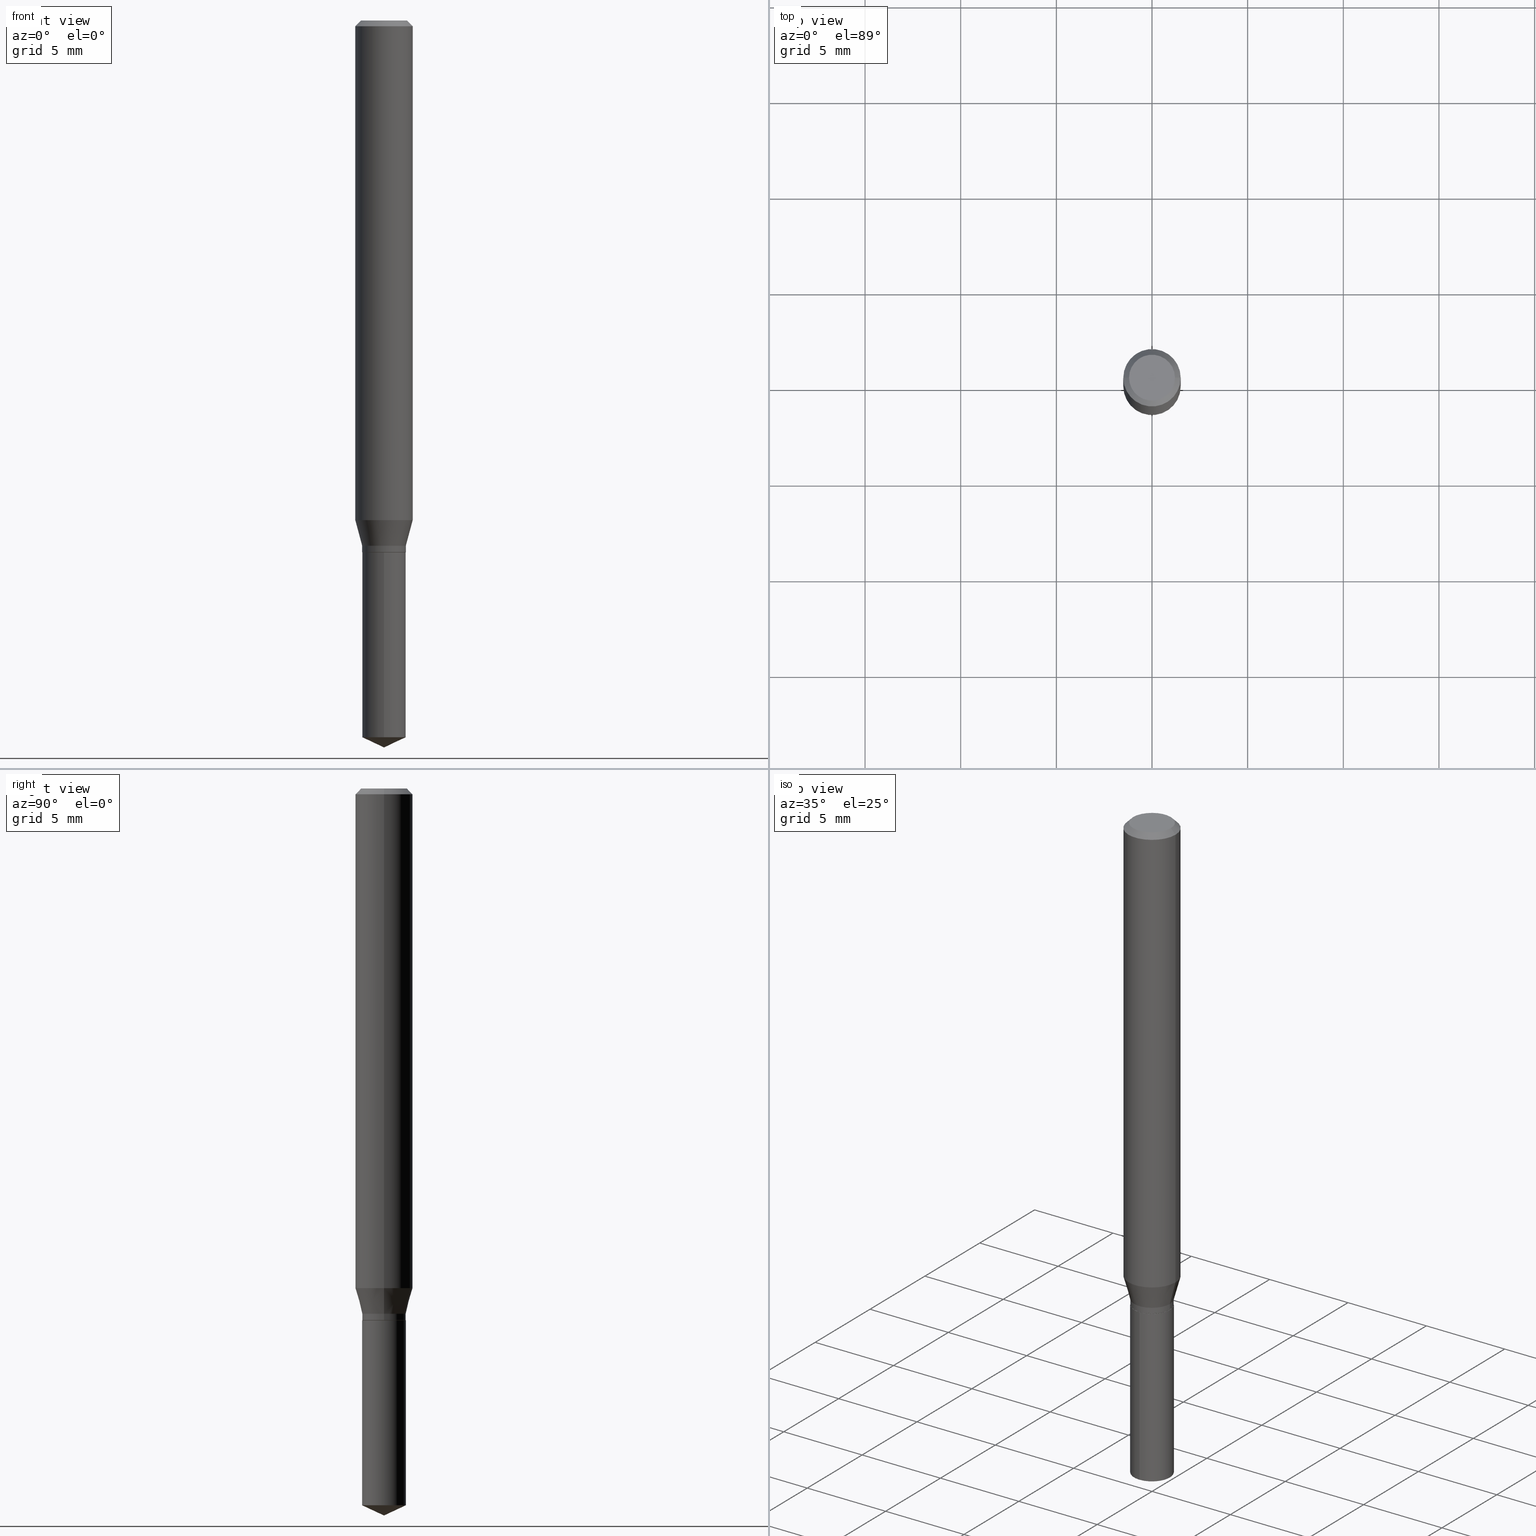
[diagram: canonical four-view strip — front | top / right | iso, engineering-drawing reading convention]
A machine part, canonical four-view strip (front | top / right | iso — engineering-drawing reading convention). The complete STEP part file that produces these views, byte-faithful:
ISO-10303-21;
HEADER;
FILE_DESCRIPTION (( 'STEP AP203' ),
    '1' );
FILE_NAME ('07634.STEP',
    '2024-04-24T00:07:09',
    ( '' ),
    ( '' ),
    'SwSTEP 2.0',
    'SolidWorks 2023',
    '' );
FILE_SCHEMA (( 'CONFIG_CONTROL_DESIGN' ));
ENDSEC;

DATA;
#1 = CARTESIAN_POINT ( 'NONE',  ( -0.05905000000000006771, 4.195754854663396409E-16, -2.904631170795525045E-30 ) ) ;
#2 = ORIENTED_EDGE ( 'NONE', *, *, #223, .F. ) ;
#3 = CALENDAR_DATE ( 2024, 23, 4 ) ;
#4 = CC_DESIGN_APPROVAL ( #477, ( #439 ) ) ;
#5 = DIRECTION ( 'NONE',  ( -2.445468806185136597E-29, 3.491481338843145583E-15, 1.000000000000000000 ) ) ;
#6 = CARTESIAN_POINT ( 'NONE',  ( -0.05904999999999999832, 3.711095515056362054E-16, -0.01181000000000007738 ) ) ;
#7 = DIRECTION ( 'NONE',  ( -2.445468806185136597E-29, 3.491481338843145583E-15, 1.000000000000000000 ) ) ;
#8 = ADVANCED_FACE ( 'NONE', ( #167 ), #390, .F. ) ;
#9 = COORDINATED_UNIVERSAL_TIME_OFFSET ( 5, 0, .BEHIND. ) ;
#10 = DIRECTION ( 'NONE',  ( -6.982962677686266711E-15, -1.000000000000000000, 3.042146986263099323E-15 ) ) ;
#11 = ORIENTED_EDGE ( 'NONE', *, *, #373, .T. ) ;
#12 = PERSON_AND_ORGANIZATION_ROLE ( 'creator' ) ;
#13 = VERTEX_POINT ( 'NONE', #393 ) ;
#14 = CIRCLE ( 'NONE', #161, 0.04490000000000000241 ) ;
#15 = CLOSED_SHELL ( 'NONE', ( #66, #276, #26, #77, #461, #400, #298, #227, #184, #430, #8, #379 ) ) ;
#16 = PERSON_AND_ORGANIZATION ( #383, #489 ) ;
#17 = EDGE_CURVE ( 'NONE', #78, #19, #95, .T. ) ;
#18 = DIRECTION ( 'NONE',  ( 1.000000000000000000, -6.982962677686266711E-15, 4.876176775795936353E-29 ) ) ;
#19 = VERTEX_POINT ( 'NONE', #100 ) ;
#20 = CARTESIAN_POINT ( 'NONE',  ( 2.675342873966538993E-29, -3.819680584694400481E-15, -1.093999999999999861 ) ) ;
#21 = ORIENTED_EDGE ( 'NONE', *, *, #211, .T. ) ;
#22 = VECTOR ( 'NONE', #68, 39.37007874015748143 ) ;
#23 = DIRECTION ( 'NONE',  ( -2.445468806185136597E-29, 3.491481338843145583E-15, 1.000000000000000000 ) ) ;
#24 = DIRECTION ( 'NONE',  ( 1.000000000000000000, -6.982962677686265133E-15, 0.000000000000000000 ) ) ;
#25 = DIRECTION ( 'NONE',  ( 2.445468806185136597E-29, -3.491481338843145583E-15, -1.000000000000000000 ) ) ;
#26 = ADVANCED_FACE ( 'NONE', ( #470 ), #171, .T. ) ;
#27 = CYLINDRICAL_SURFACE ( 'NONE', #187, 0.05905000000000006771 ) ;
#28 = UNCERTAINTY_MEASURE_WITH_UNIT (LENGTH_MEASURE( 1.000000000000000082E-05 ), #269, 'distance_accuracy_value', 'NONE');
#29 = LINE ( 'NONE', #294, #270 ) ;
#30 = AXIS2_PLACEMENT_3D ( 'NONE', #277, #163, #310 ) ;
#31 = ORIENTED_EDGE ( 'NONE', *, *, #484, .F. ) ;
#32 = EDGE_CURVE ( 'NONE', #155, #450, #90, .T. ) ;
#33 = DIRECTION ( 'NONE',  ( -6.982962677686266711E-15, -1.000000000000000000, 3.042146986263099323E-15 ) ) ;
#34 = ORIENTED_EDGE ( 'NONE', *, *, #484, .T. ) ;
#35 = DIRECTION ( 'NONE',  ( -2.445468806185136597E-29, 3.491481338843145583E-15, 1.000000000000000000 ) ) ;
#36 = EDGE_CURVE ( 'NONE', #274, #155, #98, .T. ) ;
#37 = AXIS2_PLACEMENT_3D ( 'NONE', #332, #72, #108 ) ;
#38 = CARTESIAN_POINT ( 'NONE',  ( 8.265746106709734507E-48, -1.180129479067563789E-33, -3.380025165646692144E-19 ) ) ;
#39 = DIRECTION ( 'NONE',  ( -2.445468806185136597E-29, 3.491481338843145583E-15, 1.000000000000000000 ) ) ;
#40 = CARTESIAN_POINT ( 'NONE',  ( 3.190336883563210417E-16, 0.04489999999999617908, -1.094500000000000028 ) ) ;
#41 = ORIENTED_EDGE ( 'NONE', *, *, #55, .F. ) ;
#42 = CARTESIAN_POINT ( 'NONE',  ( -0.04490000000000000241, 3.190336883562850006E-16, -2.208601855524453142E-30 ) ) ;
#43 = EDGE_LOOP ( 'NONE', ( #436, #369, #278, #132 ) ) ;
#44 = PERSON_AND_ORGANIZATION ( #383, #489 ) ;
#45 = CONICAL_SURFACE ( 'NONE', #150, 0.04440000000000000197, 0.7853981633974141952 ) ;
#46 = CARTESIAN_POINT ( 'NONE',  ( -9.261924752013118283E-28, 1.322368428517963298E-13, 37.87397874015748300 ) ) ;
#47 = EDGE_CURVE ( 'NONE', #488, #83, #173, .T. ) ;
#48 = ORIENTED_EDGE ( 'NONE', *, *, #469, .T. ) ;
#49 = DATE_AND_TIME ( #3, #282 ) ;
#50 = DIRECTION ( 'NONE',  ( -2.445468806185136597E-29, 3.491481338843145583E-15, 1.000000000000000000 ) ) ;
#51 = EDGE_CURVE ( 'NONE', #13, #135, #192, .T. ) ;
#52 = DATE_AND_TIME ( #387, #345 ) ;
#53 = DIRECTION ( 'NONE',  ( -2.445468806185136597E-29, 3.491481338843145583E-15, 1.000000000000000000 ) ) ;
#54 = APPROVAL_DATE_TIME ( #394, #286 ) ;
#55 = EDGE_CURVE ( 'NONE', #78, #352, #255, .T. ) ;
#56 = AXIS2_PLACEMENT_3D ( 'NONE', #290, #245, #466 ) ;
#57 = CIRCLE ( 'NONE', #193, 0.04490000000000000241 ) ;
#58 = AXIS2_PLACEMENT_3D ( 'NONE', #182, #364, #252 ) ;
#59 = DIRECTION ( 'NONE',  ( -6.328713451373386733E-15, -0.9063077870366508249, 0.4226182617406975539 ) ) ;
#60 = EDGE_LOOP ( 'NONE', ( #118, #434, #181, #101 ) ) ;
#61 = CARTESIAN_POINT ( 'NONE',  ( -0.04724000000000000421, 3.504923541997677355E-16, -3.380025165670481712E-19 ) ) ;
#62 = ORIENTED_EDGE ( 'NONE', *, *, #356, .F. ) ;
#63 = VECTOR ( 'NONE', #428, 39.37007874015748143 ) ;
#64 = LINE ( 'NONE', #114, #216 ) ;
#65 = AXIS2_PLACEMENT_3D ( 'NONE', #142, #368, #109 ) ;
#66 = ADVANCED_FACE ( 'NONE', ( #176 ), #482, .T. ) ;
#67 = CC_DESIGN_SECURITY_CLASSIFICATION ( #264, ( #271 ) ) ;
#68 = DIRECTION ( 'NONE',  ( -2.445468806185136877E-29, 3.491481338843145188E-15, 1.000000000000000000 ) ) ;
#69 = CARTESIAN_POINT ( 'NONE',  ( 3.607460806401367786E-29, -5.150508740125733757E-15, -1.475162786148840777 ) ) ;
#70 = DIRECTION ( 'NONE',  ( 1.000000000000000000, -6.982962677686266711E-15, 4.876176775795936353E-29 ) ) ;
#71 = EDGE_CURVE ( 'NONE', #378, #225, #426, .T. ) ;
#72 = DIRECTION ( 'NONE',  ( -2.445468806185136597E-29, 3.491481338843145583E-15, 1.000000000000000000 ) ) ;
#73 = MANIFOLD_SOLID_BREP ( 'Body-Move/Copy2[2]', #15 ) ;
#74 = ORIENTED_EDGE ( 'NONE', *, *, #153, .F. ) ;
#75 = DIRECTION ( 'NONE',  ( 0.2588190451025215166, 1.565188264969620784E-15, 0.9659258262890679791 ) ) ;
#76 = CARTESIAN_POINT ( 'NONE',  ( 0.05905000000000013016, -4.002255315040900596E-15, -1.028191481072900038 ) ) ;
#77 = ADVANCED_FACE ( 'NONE', ( #221 ), #385, .T. ) ;
#78 = VERTEX_POINT ( 'NONE', #365 ) ;
#79 = DIRECTION ( 'NONE',  ( 0.000000000000000000, 0.000000000000000000, 1.000000000000000000 ) ) ;
#80 = AXIS2_PLACEMENT_3D ( 'NONE', #195, #5, #454 ) ;
#81 = AXIS2_PLACEMENT_3D ( 'NONE', #451, #416, #257 ) ;
#82 = DIRECTION ( 'NONE',  ( -2.445468806185136597E-29, 3.491481338843145583E-15, 1.000000000000000000 ) ) ;
#83 = VERTEX_POINT ( 'NONE', #443 ) ;
#84 = DATE_AND_TIME ( #275, #453 ) ;
#85 = ADVANCED_FACE ( 'NONE', ( #147 ), #145, .F. ) ;
#86 = CYLINDRICAL_SURFACE ( 'NONE', #92, 0.04490000000000000241 ) ;
#87 = ORIENTED_EDGE ( 'NONE', *, *, #47, .F. ) ;
#88 = CALENDAR_DATE ( 2024, 23, 4 ) ;
#89 = CARTESIAN_POINT ( 'NONE',  ( -0.04490000000000000241, -3.477952267635635589E-15, -1.093999999999999861 ) ) ;
#90 = LINE ( 'NONE', #208, #355 ) ;
#91 = PERSON_AND_ORGANIZATION ( #383, #489 ) ;
#92 = AXIS2_PLACEMENT_3D ( 'NONE', #371, #125, #10 ) ;
#93 = LINE ( 'NONE', #224, #295 ) ;
#94 = ORIENTED_EDGE ( 'NONE', *, *, #433, .F. ) ;
#95 = LINE ( 'NONE', #281, #63 ) ;
#96 = COORDINATED_UNIVERSAL_TIME_OFFSET ( 5, 0, .BEHIND. ) ;
#97 = ORIENTED_EDGE ( 'NONE', *, *, #419, .F. ) ;
#98 = LINE ( 'NONE', #396, #129 ) ;
#99 = ORIENTED_EDGE ( 'NONE', *, *, #399, .F. ) ;
#100 = CARTESIAN_POINT ( 'NONE',  ( 0.04490000000000000241, -4.087826351517553684E-15, -1.080999999999999961 ) ) ;
#101 = ORIENTED_EDGE ( 'NONE', *, *, #143, .F. ) ;
#102 = DIRECTION ( 'NONE',  ( 1.000000000000000000, -6.982962677686266711E-15, 0.000000000000000000 ) ) ;
#103 = EDGE_LOOP ( 'NONE', ( #31, #457, #305, #309 ) ) ;
#104 = EDGE_CURVE ( 'NONE', #274, #474, #291, .T. ) ;
#105 = DIRECTION ( 'NONE',  ( 6.439704144417040608E-15, 0.9063077870366537114, 0.4226182617406912811 ) ) ;
#106 = CARTESIAN_POINT ( 'NONE',  ( 2.888098660104665518E-31, -4.123439461173782112E-17, -0.01181000000000007738 ) ) ;
#107 = VECTOR ( 'NONE', #459, 39.37007874015748143 ) ;
#108 = DIRECTION ( 'NONE',  ( 1.000000000000000000, -6.982962677686263555E-15, 0.000000000000000000 ) ) ;
#109 = DIRECTION ( 'NONE',  ( -1.000000000000000000, 6.982962677686266711E-15, 0.000000000000000000 ) ) ;
#110 = DIRECTION ( 'NONE',  ( 6.982962677686265922E-15, 1.000000000000000000, -3.491495526022433599E-15 ) ) ;
#111 = CIRCLE ( 'NONE', #80, 0.05905000000000013016 ) ;
#112 = CARTESIAN_POINT ( 'NONE',  ( 3.607460806401367786E-29, -5.150508740125733757E-15, -1.475162786148840777 ) ) ;
#113 = ORIENTED_EDGE ( 'NONE', *, *, #315, .F. ) ;
#114 = CARTESIAN_POINT ( 'NONE',  ( 0.05904999999999999832, -4.463468013801467941E-16, -0.01181000000000007738 ) ) ;
#115 = DIRECTION ( 'NONE',  ( 1.000000000000000000, -6.982962677686267499E-15, 4.876176775795935232E-29 ) ) ;
#116 = APPROVAL ( #382, 'UNSPECIFIED' ) ;
#117 = DIRECTION ( 'NONE',  ( 0.7071067811865451302, -7.319954787623248157E-15, -0.7071067811865499042 ) ) ;
#118 = ORIENTED_EDGE ( 'NONE', *, *, #449, .F. ) ;
#119 = AXIS2_PLACEMENT_3D ( 'NONE', #404, #222, #188 ) ;
#120 = CALENDAR_DATE ( 2024, 23, 4 ) ;
#121 = FACE_OUTER_BOUND ( 'NONE', #43, .T. ) ;
#122 = ORIENTED_EDGE ( 'NONE', *, *, #51, .T. ) ;
#123 = EDGE_CURVE ( 'NONE', #228, #322, #360, .T. ) ;
#124 = APPROVAL_STATUS ( 'not_yet_approved' ) ;
#125 = DIRECTION ( 'NONE',  ( -2.445458899330790108E-29, 3.491495526022433205E-15, 1.000000000000000000 ) ) ;
#126 = ORIENTED_EDGE ( 'NONE', *, *, #143, .T. ) ;
#127 = SHAPE_DEFINITION_REPRESENTATION ( #210, #212 ) ;
#128 = LINE ( 'NONE', #6, #280 ) ;
#129 = VECTOR ( 'NONE', #59, 39.37007874015748854 ) ;
#130 = PERSON_AND_ORGANIZATION ( #383, #489 ) ;
#131 = VECTOR ( 'NONE', #475, 39.37007874015748854 ) ;
#132 = ORIENTED_EDGE ( 'NONE', *, *, #211, .F. ) ;
#133 = AXIS2_PLACEMENT_3D ( 'NONE', #38, #35, #362 ) ;
#134 = APPROVAL_ROLE ( '' ) ;
#135 = VERTEX_POINT ( 'NONE', #61 ) ;
#136 = EDGE_LOOP ( 'NONE', ( #272, #21, #326, #94 ) ) ;
#137 = DIRECTION ( 'NONE',  ( -0.2588190451025215166, 5.211531920934551042E-15, 0.9659258262890679791 ) ) ;
#138 = AXIS2_PLACEMENT_3D ( 'NONE', #363, #25, #299 ) ;
#139 = CC_DESIGN_APPROVAL ( #286, ( #264 ) ) ;
#140 = DIRECTION ( 'NONE',  ( -2.445468806185136597E-29, 3.491481338843145583E-15, 1.000000000000000000 ) ) ;
#141 = CC_DESIGN_PERSON_AND_ORGANIZATION_ASSIGNMENT ( #424, #12, ( #439 ) ) ;
#142 = CARTESIAN_POINT ( 'NONE',  ( 2.888098660104665518E-31, -4.123439461173782112E-17, -0.01181000000000007738 ) ) ;
#143 = EDGE_CURVE ( 'NONE', #372, #450, #178, .T. ) ;
#144 = CYLINDRICAL_SURFACE ( 'NONE', #232, 0.04490000000000000241 ) ;
#145 = PLANE ( 'NONE',  #395 ) ;
#146 = EDGE_CURVE ( 'NONE', #228, #352, #29, .T. ) ;
#147 = FACE_OUTER_BOUND ( 'NONE', #340, .T. ) ;
#148 = FACE_OUTER_BOUND ( 'NONE', #190, .T. ) ;
#149 = ORIENTED_EDGE ( 'NONE', *, *, #356, .T. ) ;
#150 = AXIS2_PLACEMENT_3D ( 'NONE', #273, #234, #456 ) ;
#151 =( GEOMETRIC_REPRESENTATION_CONTEXT ( 3 ) GLOBAL_UNCERTAINTY_ASSIGNED_CONTEXT ( ( #28 ) ) GLOBAL_UNIT_ASSIGNED_CONTEXT ( ( #269, #442, #329 ) ) REPRESENTATION_CONTEXT ( 'NONE', 'WORKASPACE' ) );
#152 = ORIENTED_EDGE ( 'NONE', *, *, #17, .F. ) ;
#153 = EDGE_CURVE ( 'NONE', #155, #474, #432, .T. ) ;
#154 = APPLICATION_PROTOCOL_DEFINITION ( 'international standard', 'config_control_design', 1994, #437 ) ;
#155 = VERTEX_POINT ( 'NONE', #258 ) ;
#156 = DIRECTION ( 'NONE',  ( 1.000000000000000000, 0.000000000000000000, 0.000000000000000000 ) ) ;
#157 = ORIENTED_EDGE ( 'NONE', *, *, #153, .T. ) ;
#158 = CARTESIAN_POINT ( 'NONE',  ( 2.676565608369631794E-29, -3.821426325363822773E-15, -1.094499999999999806 ) ) ;
#159 = DIRECTION ( 'NONE',  ( -2.445458899330790108E-29, 3.491495526022433205E-15, 1.000000000000000000 ) ) ;
#160 = CC_DESIGN_PERSON_AND_ORGANIZATION_ASSIGNMENT ( #44, #348, ( #366 ) ) ;
#161 = AXIS2_PLACEMENT_3D ( 'NONE', #112, #197, #279 ) ;
#162 = CIRCLE ( 'NONE', #133, 0.04724000000000000421 ) ;
#163 = DIRECTION ( 'NONE',  ( -2.445468806185136597E-29, 3.491481338843145583E-15, 1.000000000000000000 ) ) ;
#164 = DIRECTION ( 'NONE',  ( -6.982962677686266711E-15, -1.000000000000000000, 3.042146986263099323E-15 ) ) ;
#165 = EDGE_LOOP ( 'NONE', ( #301, #374, #41, #262 ) ) ;
#166 = CARTESIAN_POINT ( 'NONE',  ( 2.676565608369631794E-29, -3.821426325363822773E-15, -1.094499999999999806 ) ) ;
#167 = FACE_OUTER_BOUND ( 'NONE', #421, .T. ) ;
#168 = COORDINATED_UNIVERSAL_TIME_OFFSET ( 5, 0, .BEHIND. ) ;
#169 = CIRCLE ( 'NONE', #30, 0.04490000000000000241 ) ;
#170 = ORIENTED_EDGE ( 'NONE', *, *, #51, .F. ) ;
#171 = CYLINDRICAL_SURFACE ( 'NONE', #337, 0.05905000000000006771 ) ;
#172 = APPROVAL_DATE_TIME ( #49, #477 ) ;
#173 = LINE ( 'NONE', #321, #403 ) ;
#174 = ORIENTED_EDGE ( 'NONE', *, *, #123, .F. ) ;
#175 = PRODUCT_RELATED_PRODUCT_CATEGORY ( 'detail', '', ( #366 ) ) ;
#176 = FACE_OUTER_BOUND ( 'NONE', #165, .T. ) ;
#177 = EDGE_LOOP ( 'NONE', ( #314, #268, #411, #2 ) ) ;
#178 = CIRCLE ( 'NONE', #338, 0.04490000000000000241 ) ;
#179 = VECTOR ( 'NONE', #296, 39.37007874015748143 ) ;
#180 = CARTESIAN_POINT ( 'NONE',  ( 3.658672935554494692E-29, -5.223595400746700193E-15, -1.496099999999999985 ) ) ;
#181 = ORIENTED_EDGE ( 'NONE', *, *, #32, .T. ) ;
#182 = CARTESIAN_POINT ( 'NONE',  ( 2.643551779486132320E-29, -3.774291327289439810E-15, -1.080999999999999961 ) ) ;
#183 = DIRECTION ( 'NONE',  ( -2.445458899330790108E-29, 3.491495526022433205E-15, 1.000000000000000000 ) ) ;
#184 = ADVANCED_FACE ( 'NONE', ( #438 ), #215, .T. ) ;
#185 = DIRECTION ( 'NONE',  ( -2.445468806185136597E-29, 3.491481338843145583E-15, 1.000000000000000000 ) ) ;
#186 = CARTESIAN_POINT ( 'NONE',  ( 0.000000000000000000, 0.000000000000000000, 0.000000000000000000 ) ) ;
#187 = AXIS2_PLACEMENT_3D ( 'NONE', #186, #481, #70 ) ;
#188 = DIRECTION ( 'NONE',  ( -6.982962677686266711E-15, -1.000000000000000000, 3.520397390770418371E-15 ) ) ;
#189 = DIRECTION ( 'NONE',  ( -0.7071067811865232589, 7.493145998870265808E-15, 0.7071067811865715536 ) ) ;
#190 = EDGE_LOOP ( 'NONE', ( #244, #11, #418, #429 ) ) ;
#191 = CARTESIAN_POINT ( 'NONE',  ( 2.514410193749072168E-29, -3.589911368923525676E-15, -1.028191481072900038 ) ) ;
#192 = CIRCLE ( 'NONE', #462, 0.04724000000000000421 ) ;
#193 = AXIS2_PLACEMENT_3D ( 'NONE', #253, #214, #260 ) ;
#194 = DIRECTION ( 'NONE',  ( 1.000000000000000000, -6.982962677686262766E-15, 0.000000000000000000 ) ) ;
#195 = CARTESIAN_POINT ( 'NONE',  ( 2.514410193749072168E-29, -3.589911368923525676E-15, -1.028191481072900038 ) ) ;
#196 = ORIENTED_EDGE ( 'NONE', *, *, #490, .F. ) ;
#197 = DIRECTION ( 'NONE',  ( -2.445458899330790108E-29, 3.491495526022433205E-15, 1.000000000000000000 ) ) ;
#198 = AXIS2_PLACEMENT_3D ( 'NONE', #46, #202, #346 ) ;
#199 = ORIENTED_EDGE ( 'NONE', *, *, #449, .T. ) ;
#200 = LOCAL_TIME ( 20, 7, 9.000000000000000000, #9 ) ;
#201 = PERSON_AND_ORGANIZATION ( #383, #489 ) ;
#202 = DIRECTION ( 'NONE',  ( -2.445458899330790108E-29, 3.491495526022433205E-15, 1.000000000000000000 ) ) ;
#203 = PERSON_AND_ORGANIZATION_ROLE ( 'classification_officer' ) ;
#204 = CYLINDRICAL_SURFACE ( 'NONE', #405, 0.04490000000000000241 ) ;
#205 = EDGE_CURVE ( 'NONE', #322, #78, #410, .T. ) ;
#206 = PERSON_AND_ORGANIZATION_ROLE ( 'creator' ) ;
#207 = EDGE_LOOP ( 'NONE', ( #87, #303, #476, #333 ) ) ;
#208 = CARTESIAN_POINT ( 'NONE',  ( -3.135350242280866089E-16, -0.04490000000000382574, -1.094499999999999806 ) ) ;
#209 = CONICAL_SURFACE ( 'NONE', #198, 84.42940631927518780, 1.134464013796319781 ) ;
#210 = PRODUCT_DEFINITION_SHAPE ( 'NONE', 'NONE',  #439 ) ;
#211 = EDGE_CURVE ( 'NONE', #352, #78, #57, .T. ) ;
#212 = ADVANCED_BREP_SHAPE_REPRESENTATION ( '07634', ( #398, #73, #247 ), #151 ) ;
#213 = CARTESIAN_POINT ( 'NONE',  ( 8.265746106709734507E-48, -1.180129479067563789E-33, -3.380025165646692144E-19 ) ) ;
#214 = DIRECTION ( 'NONE',  ( -2.445468806185136597E-29, 3.491481338843145583E-15, 1.000000000000000000 ) ) ;
#215 = CONICAL_SURFACE ( 'NONE', #65, 0.05904999999999999832, 0.7853981633974449483 ) ;
#216 = VECTOR ( 'NONE', #117, 39.37007874015748143 ) ;
#217 = CARTESIAN_POINT ( 'NONE',  ( 3.190336883563116739E-16, 0.04489999999999617908, -1.094500000000000028 ) ) ;
#218 = CARTESIAN_POINT ( 'NONE',  ( 3.658651059288794515E-29, -5.223626456482161457E-15, -1.496099999999999985 ) ) ;
#219 = CC_DESIGN_PERSON_AND_ORGANIZATION_ASSIGNMENT ( #201, #203, ( #264 ) ) ;
#220 = FACE_OUTER_BOUND ( 'NONE', #415, .T. ) ;
#221 = FACE_OUTER_BOUND ( 'NONE', #242, .T. ) ;
#222 = DIRECTION ( 'NONE',  ( -2.445458899330790108E-29, 3.491495526022433205E-15, 1.000000000000000000 ) ) ;
#223 = EDGE_CURVE ( 'NONE', #460, #378, #297, .T. ) ;
#224 = CARTESIAN_POINT ( 'NONE',  ( 0.04490000000000000241, -4.087826351517553684E-15, -1.080999999999999961 ) ) ;
#225 = VERTEX_POINT ( 'NONE', #408 ) ;
#226 = DIRECTION ( 'NONE',  ( -2.445468806185136597E-29, 3.491481338843145583E-15, 1.000000000000000000 ) ) ;
#227 = ADVANCED_FACE ( 'NONE', ( #148 ), #27, .T. ) ;
#228 = VERTEX_POINT ( 'NONE', #444 ) ;
#229 = MECHANICAL_CONTEXT ( 'NONE', #437, 'mechanical' ) ;
#230 = DESIGN_CONTEXT ( 'detailed design', #266, 'design' ) ;
#231 = CONICAL_SURFACE ( 'NONE', #138, 0.05904999999999999832, 0.7853981633974449483 ) ;
#232 = AXIS2_PLACEMENT_3D ( 'NONE', #402, #39, #478 ) ;
#233 = EDGE_LOOP ( 'NONE', ( #251, #284, #113, #152 ) ) ;
#234 = DIRECTION ( 'NONE',  ( -2.445468806185136597E-29, 3.491481338843145583E-15, 1.000000000000000000 ) ) ;
#235 = EDGE_LOOP ( 'NONE', ( #170, #34, #392, #99 ) ) ;
#236 = FACE_OUTER_BOUND ( 'NONE', #254, .T. ) ;
#237 = CARTESIAN_POINT ( 'NONE',  ( 2.676565608369631794E-29, -3.821426325363822773E-15, -1.094499999999999806 ) ) ;
#238 = APPROVAL_STATUS ( 'not_yet_approved' ) ;
#239 = CARTESIAN_POINT ( 'NONE',  ( 0.04440000000000000197, -4.131469868253092851E-15, -1.094499999999999806 ) ) ;
#240 = ADVANCED_FACE ( 'NONE', ( #359 ), #464, .T. ) ;
#241 = APPROVAL_DATE_TIME ( #52, #116 ) ;
#242 = EDGE_LOOP ( 'NONE', ( #468, #409, #196, #335 ) ) ;
#243 = PERSON_AND_ORGANIZATION_ROLE ( 'design_supplier' ) ;
#244 = ORIENTED_EDGE ( 'NONE', *, *, #358, .F. ) ;
#245 = DIRECTION ( 'NONE',  ( -2.438088387897960049E-29, 3.491481338843145188E-15, 1.000000000000000000 ) ) ;
#246 = AXIS2_PLACEMENT_3D ( 'NONE', #401, #23, #102 ) ;
#247 = AXIS2_PLACEMENT_3D ( 'NONE', #375, #79, #156 ) ;
#248 = CARTESIAN_POINT ( 'NONE',  ( 0.000000000000000000, 0.000000000000000000, 0.000000000000000000 ) ) ;
#249 = ORIENTED_EDGE ( 'NONE', *, *, #351, .F. ) ;
#250 = CARTESIAN_POINT ( 'NONE',  ( 2.676565608369631794E-29, -3.821426325363822773E-15, -1.094499999999999806 ) ) ;
#251 = ORIENTED_EDGE ( 'NONE', *, *, #55, .T. ) ;
#252 = DIRECTION ( 'NONE',  ( 1.000000000000000000, -6.982962677686263555E-15, 0.000000000000000000 ) ) ;
#253 = CARTESIAN_POINT ( 'NONE',  ( 2.675342873966538993E-29, -3.819680584694400481E-15, -1.093999999999999861 ) ) ;
#254 = EDGE_LOOP ( 'NONE', ( #381, #455, #249 ) ) ;
#255 = CIRCLE ( 'NONE', #353, 0.04490000000000000241 ) ;
#256 = AXIS2_PLACEMENT_3D ( 'NONE', #261, #324, #486 ) ;
#257 = DIRECTION ( 'NONE',  ( -1.000000000000000000, 6.982962677686265922E-15, -4.876176775795935793E-29 ) ) ;
#258 = CARTESIAN_POINT ( 'NONE',  ( -3.135350242280772904E-16, -0.04490000000000515107, -1.475162786148840555 ) ) ;
#259 = DIMENSIONAL_EXPONENTS ( 1.000000000000000000, 0.000000000000000000, 0.000000000000000000, 0.000000000000000000, 0.000000000000000000, 0.000000000000000000, 0.000000000000000000 ) ;
#260 = DIRECTION ( 'NONE',  ( 1.000000000000000000, -6.982962677686263555E-15, 0.000000000000000000 ) ) ;
#261 = CARTESIAN_POINT ( 'NONE',  ( 2.676565608369631794E-29, -3.821426325363822773E-15, -1.094499999999999806 ) ) ;
#262 = ORIENTED_EDGE ( 'NONE', *, *, #205, .F. ) ;
#263 = CC_DESIGN_PERSON_AND_ORGANIZATION_ASSIGNMENT ( #130, #206, ( #271 ) ) ;
#264 = SECURITY_CLASSIFICATION ( '', '', #350 ) ;
#265 = CARTESIAN_POINT ( 'NONE',  ( 2.676565608369631794E-29, -3.821426325363822773E-15, -1.094499999999999806 ) ) ;
#266 = APPLICATION_CONTEXT ( 'configuration controlled 3d designs of mechanical parts and assemblies' ) ;
#267 = CC_DESIGN_DATE_AND_TIME_ASSIGNMENT ( #458, #318, ( #264 ) ) ;
#268 = ORIENTED_EDGE ( 'NONE', *, *, #358, .T. ) ;
#269 =( CONVERSION_BASED_UNIT ( 'INCH', #341 ) LENGTH_UNIT ( ) NAMED_UNIT ( #259 ) );
#270 = VECTOR ( 'NONE', #189, 39.37007874015748854 ) ;
#271 = PRODUCT_DEFINITION_FORMATION_WITH_SPECIFIED_SOURCE ( 'ANY', '', #366, .NOT_KNOWN. ) ;
#272 = ORIENTED_EDGE ( 'NONE', *, *, #311, .F. ) ;
#273 = CARTESIAN_POINT ( 'NONE',  ( 2.676565608369631794E-29, -3.821426325363822773E-15, -1.094499999999999806 ) ) ;
#274 = VERTEX_POINT ( 'NONE', #218 ) ;
#275 = CALENDAR_DATE ( 2024, 23, 4 ) ;
#276 = ADVANCED_FACE ( 'NONE', ( #485 ), #231, .T. ) ;
#277 = CARTESIAN_POINT ( 'NONE',  ( 2.643551779486132320E-29, -3.774291327289439810E-15, -1.080999999999999961 ) ) ;
#278 = ORIENTED_EDGE ( 'NONE', *, *, #205, .T. ) ;
#279 = DIRECTION ( 'NONE',  ( -6.982962677686266711E-15, -1.000000000000000000, 6.084293972526198645E-15 ) ) ;
#280 = VECTOR ( 'NONE', #425, 39.37007874015748143 ) ;
#281 = CARTESIAN_POINT ( 'NONE',  ( 0.04490000000000000241, -3.135350242281134301E-16, 2.189403372332375126E-30 ) ) ;
#282 = LOCAL_TIME ( 20, 7, 9.000000000000000000, #431 ) ;
#283 = DATE_TIME_ROLE ( 'creation_date' ) ;
#284 = ORIENTED_EDGE ( 'NONE', *, *, #311, .T. ) ;
#285 = APPLICATION_PROTOCOL_DEFINITION ( 'international standard', 'config_control_design', 1994, #266 ) ;
#286 = APPROVAL ( #238, 'UNSPECIFIED' ) ;
#287 = DIRECTION ( 'NONE',  ( -2.445458899330790108E-29, 3.491495526022433599E-15, 1.000000000000000000 ) ) ;
#288 = CIRCLE ( 'NONE', #308, 0.04490000000000000241 ) ;
#289 = EDGE_LOOP ( 'NONE', ( #157, #199, #62, #319 ) ) ;
#290 = CARTESIAN_POINT ( 'NONE',  ( 2.676565608369631794E-29, -3.821426325363822773E-15, -1.094499999999999806 ) ) ;
#291 = LINE ( 'NONE', #180, #376 ) ;
#292 = ADVANCED_FACE ( 'NONE', ( #445 ), #86, .T. ) ;
#293 = CARTESIAN_POINT ( 'NONE',  ( -0.04490000000000000241, -3.477952267635635589E-15, -1.080999999999999961 ) ) ;
#294 = CARTESIAN_POINT ( 'NONE',  ( -0.04440000000000000197, -3.505945350686337932E-15, -1.094499999999999806 ) ) ;
#295 = VECTOR ( 'NONE', #75, 39.37007874015748143 ) ;
#296 = DIRECTION ( 'NONE',  ( -2.445458899330790108E-29, 3.491495526022433599E-15, 1.000000000000000000 ) ) ;
#297 = LINE ( 'NONE', #330, #22 ) ;
#298 = ADVANCED_FACE ( 'NONE', ( #342 ), #452, .T. ) ;
#299 = DIRECTION ( 'NONE',  ( -1.000000000000000000, 6.982962677686266711E-15, 0.000000000000000000 ) ) ;
#300 = APPROVAL_PERSON_ORGANIZATION ( #320, #286, #134 ) ;
#301 = ORIENTED_EDGE ( 'NONE', *, *, #419, .T. ) ;
#302 = CC_DESIGN_PERSON_AND_ORGANIZATION_ASSIGNMENT ( #91, #243, ( #271 ) ) ;
#303 = ORIENTED_EDGE ( 'NONE', *, *, #433, .T. ) ;
#304 = CARTESIAN_POINT ( 'NONE',  ( -3.135350242280866089E-16, -0.04490000000000382574, -1.094499999999999806 ) ) ;
#305 = ORIENTED_EDGE ( 'NONE', *, *, #399, .T. ) ;
#306 = FACE_OUTER_BOUND ( 'NONE', #233, .T. ) ;
#307 = DIRECTION ( 'NONE',  ( -2.445458899330790108E-29, 3.491495526022433205E-15, 1.000000000000000000 ) ) ;
#308 = AXIS2_PLACEMENT_3D ( 'NONE', #265, #159, #164 ) ;
#309 = ORIENTED_EDGE ( 'NONE', *, *, #487, .T. ) ;
#310 = DIRECTION ( 'NONE',  ( 1.000000000000000000, -6.982962677686263555E-15, 0.000000000000000000 ) ) ;
#311 = EDGE_CURVE ( 'NONE', #352, #488, #380, .T. ) ;
#312 = COORDINATED_UNIVERSAL_TIME_OFFSET ( 5, 0, .BEHIND. ) ;
#313 = DIRECTION ( 'NONE',  ( 1.000000000000000000, -6.982962677686263555E-15, 0.000000000000000000 ) ) ;
#314 = ORIENTED_EDGE ( 'NONE', *, *, #490, .T. ) ;
#315 = EDGE_CURVE ( 'NONE', #19, #488, #169, .T. ) ;
#316 = DIRECTION ( 'NONE',  ( -6.982962677686266711E-15, -1.000000000000000000, 3.042146986263099323E-15 ) ) ;
#317 = APPROVAL_PERSON_ORGANIZATION ( #467, #477, #422 ) ;
#318 = DATE_TIME_ROLE ( 'classification_date' ) ;
#319 = ORIENTED_EDGE ( 'NONE', *, *, #32, .F. ) ;
#320 = PERSON_AND_ORGANIZATION ( #383, #489 ) ;
#321 = CARTESIAN_POINT ( 'NONE',  ( -0.04490000000000000241, -3.455257638933155254E-15, -1.080999999999999961 ) ) ;
#322 = VERTEX_POINT ( 'NONE', #239 ) ;
#323 = AXIS2_PLACEMENT_3D ( 'NONE', #237, #7, #407 ) ;
#324 = DIRECTION ( 'NONE',  ( -2.445468806185136597E-29, 3.491481338843145583E-15, 1.000000000000000000 ) ) ;
#325 = ADVANCED_FACE ( 'NONE', ( #420 ), #423, .T. ) ;
#326 = ORIENTED_EDGE ( 'NONE', *, *, #17, .T. ) ;
#327 = CARTESIAN_POINT ( 'NONE',  ( 3.190336883563209924E-16, 0.04489999999999483987, -1.475162786148840999 ) ) ;
#328 = DIRECTION ( 'NONE',  ( 2.445458899330789267E-29, -3.491495526022433599E-15, -1.000000000000000000 ) ) ;
#329 =( NAMED_UNIT ( * ) SI_UNIT ( $, .STERADIAN. ) SOLID_ANGLE_UNIT ( ) );
#330 = CARTESIAN_POINT ( 'NONE',  ( 0.05905000000000006771, -4.123439461173745257E-16, 2.879382386107503723E-30 ) ) ;
#331 = CIRCLE ( 'NONE', #483, 0.04440000000000000197 ) ;
#332 = CARTESIAN_POINT ( 'NONE',  ( 2.643551779486132320E-29, -3.774291327289439810E-15, -1.080999999999999961 ) ) ;
#333 = ORIENTED_EDGE ( 'NONE', *, *, #373, .F. ) ;
#334 = DIRECTION ( 'NONE',  ( -2.445458899330790108E-29, 3.491495526022433205E-15, 1.000000000000000000 ) ) ;
#335 = ORIENTED_EDGE ( 'NONE', *, *, #367, .F. ) ;
#336 =( LENGTH_UNIT ( ) NAMED_UNIT ( * ) SI_UNIT ( $, .METRE. ) );
#337 = AXIS2_PLACEMENT_3D ( 'NONE', #248, #53, #18 ) ;
#338 = AXIS2_PLACEMENT_3D ( 'NONE', #479, #183, #33 ) ;
#339 = AXIS2_PLACEMENT_3D ( 'NONE', #191, #226, #24 ) ;
#340 = EDGE_LOOP ( 'NONE', ( #149, #126 ) ) ;
#341 = LENGTH_MEASURE_WITH_UNIT ( LENGTH_MEASURE( 0.02539999999999999897 ), #336 );
#342 = FACE_OUTER_BOUND ( 'NONE', #207, .T. ) ;
#343 = LINE ( 'NONE', #1, #412 ) ;
#344 = CC_DESIGN_DATE_AND_TIME_ASSIGNMENT ( #84, #283, ( #439 ) ) ;
#345 = LOCAL_TIME ( 20, 7, 9.000000000000000000, #96 ) ;
#346 = DIRECTION ( 'NONE',  ( -6.982962677686266711E-15, -1.000000000000000000, 3.520397390770418371E-15 ) ) ;
#347 = DIRECTION ( 'NONE',  ( 1.000000000000000000, -6.982962677686266711E-15, 4.876185090822587894E-29 ) ) ;
#348 = PERSON_AND_ORGANIZATION_ROLE ( 'design_owner' ) ;
#349 = CARTESIAN_POINT ( 'NONE',  ( 0.000000000000000000, 0.000000000000000000, 0.000000000000000000 ) ) ;
#350 = SECURITY_CLASSIFICATION_LEVEL ( 'unclassified' ) ;
#351 = EDGE_CURVE ( 'NONE', #474, #155, #14, .T. ) ;
#352 = VERTEX_POINT ( 'NONE', #89 ) ;
#353 = AXIS2_PLACEMENT_3D ( 'NONE', #20, #140, #473 ) ;
#354 = EDGE_LOOP ( 'NONE', ( #370, #447, #74 ) ) ;
#355 = VECTOR ( 'NONE', #287, 39.37007874015748143 ) ;
#356 = EDGE_CURVE ( 'NONE', #450, #372, #288, .T. ) ;
#357 = DIRECTION ( 'NONE',  ( -2.445468806185136597E-29, 3.491481338843145583E-15, 1.000000000000000000 ) ) ;
#358 = EDGE_CURVE ( 'NONE', #83, #225, #343, .T. ) ;
#359 = FACE_OUTER_BOUND ( 'NONE', #354, .T. ) ;
#360 = CIRCLE ( 'NONE', #256, 0.04440000000000000197 ) ;
#361 = AXIS2_PLACEMENT_3D ( 'NONE', #106, #185, #414 ) ;
#362 = DIRECTION ( 'NONE',  ( 1.000000000000000000, -6.982962677686266711E-15, 4.876185090822587894E-29 ) ) ;
#363 = CARTESIAN_POINT ( 'NONE',  ( 2.888098660104665518E-31, -4.123439461173782112E-17, -0.01181000000000007738 ) ) ;
#364 = DIRECTION ( 'NONE',  ( -2.445468806185136597E-29, 3.491481338843145583E-15, 1.000000000000000000 ) ) ;
#365 = CARTESIAN_POINT ( 'NONE',  ( 0.04490000000000000241, -4.133215608922514355E-15, -1.093999999999999861 ) ) ;
#366 = PRODUCT ( '07634', '07634', '', ( #229 ) ) ;
#367 = EDGE_CURVE ( 'NONE', #19, #460, #93, .T. ) ;
#368 = DIRECTION ( 'NONE',  ( 2.445468806185136597E-29, -3.491481338843145583E-15, -1.000000000000000000 ) ) ;
#369 = ORIENTED_EDGE ( 'NONE', *, *, #123, .T. ) ;
#370 = ORIENTED_EDGE ( 'NONE', *, *, #36, .F. ) ;
#371 = CARTESIAN_POINT ( 'NONE',  ( 2.676565608369631794E-29, -3.821426325363822773E-15, -1.094499999999999806 ) ) ;
#372 = VERTEX_POINT ( 'NONE', #40 ) ;
#373 = EDGE_CURVE ( 'NONE', #83, #460, #111, .T. ) ;
#374 = ORIENTED_EDGE ( 'NONE', *, *, #146, .T. ) ;
#375 = CARTESIAN_POINT ( 'NONE',  ( 0.000000000000000000, 0.000000000000000000, 0.000000000000000000 ) ) ;
#376 = VECTOR ( 'NONE', #105, 39.37007874015748854 ) ;
#377 = CLOSED_SHELL ( 'NONE', ( #292, #240, #389, #325, #85 ) ) ;
#378 = VERTEX_POINT ( 'NONE', #384 ) ;
#379 = ADVANCED_FACE ( 'NONE', ( #121 ), #45, .T. ) ;
#380 = LINE ( 'NONE', #42, #107 ) ;
#381 = ORIENTED_EDGE ( 'NONE', *, *, #104, .F. ) ;
#382 = APPROVAL_STATUS ( 'not_yet_approved' ) ;
#383 = PERSON ( 'UNSPECIFIED', 'UNSPECIFIED', 'UNSPECIFIED', ('UNSPECIFIED'), ('UNSPECIFIED'), ('UNSPECIFIED') ) ;
#384 = CARTESIAN_POINT ( 'NONE',  ( 0.05904999999999999832, -4.535783407291118600E-16, -0.01181000000000007738 ) ) ;
#385 = CONICAL_SURFACE ( 'NONE', #37, 0.04490000000000000241, 0.2617993877991502405 ) ;
#386 = CIRCLE ( 'NONE', #361, 0.05904999999999999832 ) ;
#387 = CALENDAR_DATE ( 2024, 23, 4 ) ;
#388 = FACE_OUTER_BOUND ( 'NONE', #136, .T. ) ;
#389 = ADVANCED_FACE ( 'NONE', ( #236 ), #209, .T. ) ;
#390 = PLANE ( 'NONE',  #56 ) ;
#391 = APPROVAL_ROLE ( '' ) ;
#392 = ORIENTED_EDGE ( 'NONE', *, *, #71, .T. ) ;
#393 = CARTESIAN_POINT ( 'NONE',  ( 0.04724000000000000421, -3.852183633974369838E-16, -3.380025165621689721E-19 ) ) ;
#394 = DATE_AND_TIME ( #120, #200 ) ;
#395 = AXIS2_PLACEMENT_3D ( 'NONE', #250, #328, #110 ) ;
#396 = CARTESIAN_POINT ( 'NONE',  ( 3.658651059288795076E-29, -5.223626456482161457E-15, -1.496099999999999985 ) ) ;
#397 = APPROVAL_PERSON_ORGANIZATION ( #16, #116, #391 ) ;
#398 = MANIFOLD_SOLID_BREP ( 'Body-Move/Copy2[1]', #377 ) ;
#399 = EDGE_CURVE ( 'NONE', #135, #225, #128, .T. ) ;
#400 = ADVANCED_FACE ( 'NONE', ( #388 ), #204, .T. ) ;
#401 = CARTESIAN_POINT ( 'NONE',  ( 2.888098660104665518E-31, -4.123439461173782112E-17, -0.01181000000000007738 ) ) ;
#402 = CARTESIAN_POINT ( 'NONE',  ( 0.000000000000000000, 0.000000000000000000, 0.000000000000000000 ) ) ;
#403 = VECTOR ( 'NONE', #137, 39.37007874015748143 ) ;
#404 = CARTESIAN_POINT ( 'NONE',  ( -9.261924752013118283E-28, 1.322368428517963298E-13, 37.87397874015748300 ) ) ;
#405 = AXIS2_PLACEMENT_3D ( 'NONE', #349, #480, #115 ) ;
#406 = PLANE ( 'NONE',  #81 ) ;
#407 = DIRECTION ( 'NONE',  ( 1.000000000000000000, -6.982962677686262766E-15, 0.000000000000000000 ) ) ;
#408 = CARTESIAN_POINT ( 'NONE',  ( -0.05904999999999999832, -1.395997396301291223E-15, -0.01181000000000007738 ) ) ;
#409 = ORIENTED_EDGE ( 'NONE', *, *, #47, .T. ) ;
#410 = LINE ( 'NONE', #435, #131 ) ;
#411 = ORIENTED_EDGE ( 'NONE', *, *, #71, .F. ) ;
#412 = VECTOR ( 'NONE', #413, 39.37007874015748143 ) ;
#413 = DIRECTION ( 'NONE',  ( -2.445468806185136877E-29, 3.491481338843145188E-15, 1.000000000000000000 ) ) ;
#414 = DIRECTION ( 'NONE',  ( 1.000000000000000000, -6.982962677686266711E-15, 0.000000000000000000 ) ) ;
#415 = EDGE_LOOP ( 'NONE', ( #48, #122 ) ) ;
#416 = DIRECTION ( 'NONE',  ( 2.438088387897960049E-29, -3.491481338843145188E-15, -1.000000000000000000 ) ) ;
#417 = AXIS2_PLACEMENT_3D ( 'NONE', #463, #50, #313 ) ;
#418 = ORIENTED_EDGE ( 'NONE', *, *, #223, .T. ) ;
#419 = EDGE_CURVE ( 'NONE', #322, #228, #331, .T. ) ;
#420 = FACE_OUTER_BOUND ( 'NONE', #60, .T. ) ;
#421 = EDGE_LOOP ( 'NONE', ( #97, #174 ) ) ;
#422 = APPROVAL_ROLE ( '' ) ;
#423 = CYLINDRICAL_SURFACE ( 'NONE', #446, 0.04490000000000000241 ) ;
#424 = PERSON_AND_ORGANIZATION ( #383, #489 ) ;
#425 = DIRECTION ( 'NONE',  ( -0.7071067811865451302, 2.468850131082231817E-15, -0.7071067811865499042 ) ) ;
#426 = CIRCLE ( 'NONE', #246, 0.05904999999999999832 ) ;
#427 = CIRCLE ( 'NONE', #58, 0.04490000000000000241 ) ;
#428 = DIRECTION ( 'NONE',  ( -2.445468806185136877E-29, 3.491481338843145188E-15, 1.000000000000000000 ) ) ;
#429 = ORIENTED_EDGE ( 'NONE', *, *, #487, .F. ) ;
#430 = ADVANCED_FACE ( 'NONE', ( #220 ), #406, .F. ) ;
#431 = COORDINATED_UNIVERSAL_TIME_OFFSET ( 5, 0, .BEHIND. ) ;
#432 = CIRCLE ( 'NONE', #471, 0.04490000000000000241 ) ;
#433 = EDGE_CURVE ( 'NONE', #488, #19, #427, .T. ) ;
#434 = ORIENTED_EDGE ( 'NONE', *, *, #351, .T. ) ;
#435 = CARTESIAN_POINT ( 'NONE',  ( 0.04440000000000000197, -4.131469868253092851E-15, -1.094499999999999806 ) ) ;
#436 = ORIENTED_EDGE ( 'NONE', *, *, #146, .F. ) ;
#437 = APPLICATION_CONTEXT ( 'configuration controlled 3d designs of mechanical parts and assemblies' ) ;
#438 = FACE_OUTER_BOUND ( 'NONE', #103, .T. ) ;
#439 = PRODUCT_DEFINITION ( 'UNKNOWN', '', #271, #230 ) ;
#440 = DIRECTION ( 'NONE',  ( -6.982962677686266711E-15, -1.000000000000000000, 6.084293972526198645E-15 ) ) ;
#441 = LOCAL_TIME ( 20, 7, 9.000000000000000000, #312 ) ;
#442 =( NAMED_UNIT ( * ) PLANE_ANGLE_UNIT ( ) SI_UNIT ( $, .RADIAN. ) );
#443 = CARTESIAN_POINT ( 'NONE',  ( -0.05905000000000013016, -3.170335883457185788E-15, -1.028191481072900038 ) ) ;
#444 = CARTESIAN_POINT ( 'NONE',  ( -0.04440000000000000197, -3.503296123512227125E-15, -1.094499999999999806 ) ) ;
#445 = FACE_OUTER_BOUND ( 'NONE', #289, .T. ) ;
#446 = AXIS2_PLACEMENT_3D ( 'NONE', #166, #307, #316 ) ;
#447 = ORIENTED_EDGE ( 'NONE', *, *, #104, .T. ) ;
#448 = LINE ( 'NONE', #217, #179 ) ;
#449 = EDGE_CURVE ( 'NONE', #474, #372, #448, .T. ) ;
#450 = VERTEX_POINT ( 'NONE', #304 ) ;
#451 = CARTESIAN_POINT ( 'NONE',  ( 4.132873053354867254E-48, -5.900647395337818946E-34, -1.690012582823346072E-19 ) ) ;
#452 = CONICAL_SURFACE ( 'NONE', #417, 0.04490000000000000241, 0.2617993877991502405 ) ;
#453 = LOCAL_TIME ( 20, 7, 9.000000000000000000, #168 ) ;
#454 = DIRECTION ( 'NONE',  ( 1.000000000000000000, -6.982962677686265133E-15, 0.000000000000000000 ) ) ;
#455 = ORIENTED_EDGE ( 'NONE', *, *, #36, .T. ) ;
#456 = DIRECTION ( 'NONE',  ( 1.000000000000000000, -6.982962677686262766E-15, 0.000000000000000000 ) ) ;
#457 = ORIENTED_EDGE ( 'NONE', *, *, #469, .F. ) ;
#458 = DATE_AND_TIME ( #88, #441 ) ;
#459 = DIRECTION ( 'NONE',  ( -2.445468806185136877E-29, 3.491481338843145188E-15, 1.000000000000000000 ) ) ;
#460 = VERTEX_POINT ( 'NONE', #76 ) ;
#461 = ADVANCED_FACE ( 'NONE', ( #306 ), #144, .T. ) ;
#462 = AXIS2_PLACEMENT_3D ( 'NONE', #213, #357, #347 ) ;
#463 = CARTESIAN_POINT ( 'NONE',  ( 2.643551779486132320E-29, -3.774291327289439810E-15, -1.080999999999999961 ) ) ;
#464 = CONICAL_SURFACE ( 'NONE', #119, 84.42940631927518780, 1.134464013796319781 ) ;
#465 = CC_DESIGN_APPROVAL ( #116, ( #271 ) ) ;
#466 = DIRECTION ( 'NONE',  ( 1.000000000000000000, -6.982962677686265922E-15, 4.876176775795935793E-29 ) ) ;
#467 = PERSON_AND_ORGANIZATION ( #383, #489 ) ;
#468 = ORIENTED_EDGE ( 'NONE', *, *, #315, .T. ) ;
#469 = EDGE_CURVE ( 'NONE', #135, #13, #162, .T. ) ;
#470 = FACE_OUTER_BOUND ( 'NONE', #177, .T. ) ;
#471 = AXIS2_PLACEMENT_3D ( 'NONE', #69, #334, #440 ) ;
#472 = CIRCLE ( 'NONE', #339, 0.05905000000000013016 ) ;
#473 = DIRECTION ( 'NONE',  ( 1.000000000000000000, -6.982962677686263555E-15, 0.000000000000000000 ) ) ;
#474 = VERTEX_POINT ( 'NONE', #327 ) ;
#475 = DIRECTION ( 'NONE',  ( 0.7071067811865232589, -2.468850131082003836E-15, 0.7071067811865715536 ) ) ;
#476 = ORIENTED_EDGE ( 'NONE', *, *, #367, .T. ) ;
#477 = APPROVAL ( #124, 'UNSPECIFIED' ) ;
#478 = DIRECTION ( 'NONE',  ( 1.000000000000000000, -6.982962677686267499E-15, 4.876176775795935232E-29 ) ) ;
#479 = CARTESIAN_POINT ( 'NONE',  ( 2.676565608369631794E-29, -3.821426325363822773E-15, -1.094499999999999806 ) ) ;
#480 = DIRECTION ( 'NONE',  ( -2.445468806185136597E-29, 3.491481338843145583E-15, 1.000000000000000000 ) ) ;
#481 = DIRECTION ( 'NONE',  ( -2.445468806185136597E-29, 3.491481338843145583E-15, 1.000000000000000000 ) ) ;
#482 = CONICAL_SURFACE ( 'NONE', #323, 0.04440000000000000197, 0.7853981633974141952 ) ;
#483 = AXIS2_PLACEMENT_3D ( 'NONE', #158, #82, #194 ) ;
#484 = EDGE_CURVE ( 'NONE', #13, #378, #64, .T. ) ;
#485 = FACE_OUTER_BOUND ( 'NONE', #235, .T. ) ;
#486 = DIRECTION ( 'NONE',  ( 1.000000000000000000, -6.982962677686262766E-15, 0.000000000000000000 ) ) ;
#487 = EDGE_CURVE ( 'NONE', #225, #378, #386, .T. ) ;
#488 = VERTEX_POINT ( 'NONE', #293 ) ;
#489 = ORGANIZATION ( 'UNSPECIFIED', 'UNSPECIFIED', '' ) ;
#490 = EDGE_CURVE ( 'NONE', #460, #83, #472, .T. ) ;
ENDSEC;
END-ISO-10303-21;
